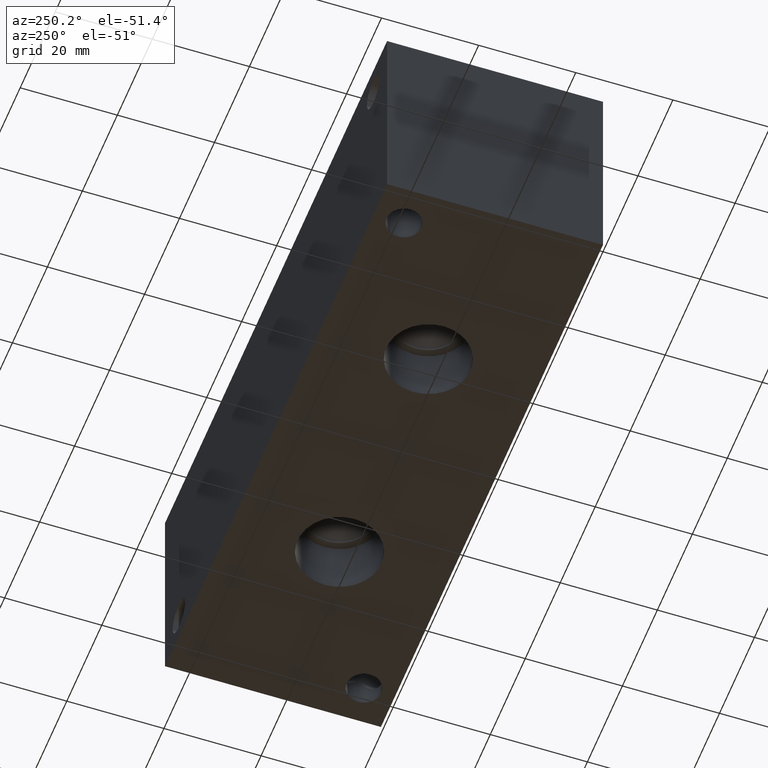
[diagram: clean part render]
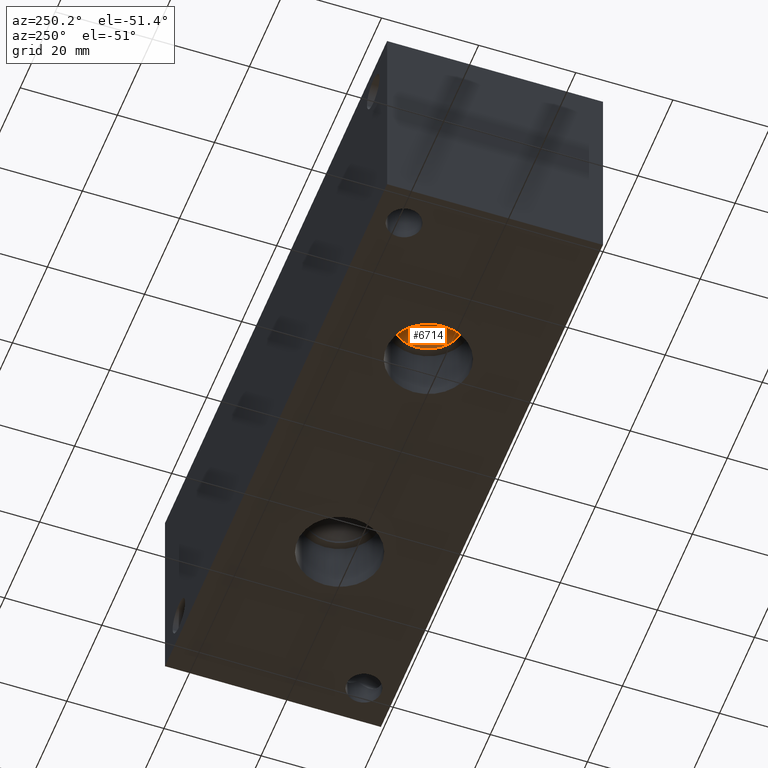
[diagram: same view with one face highlighted and labeled with its STEP entity id]
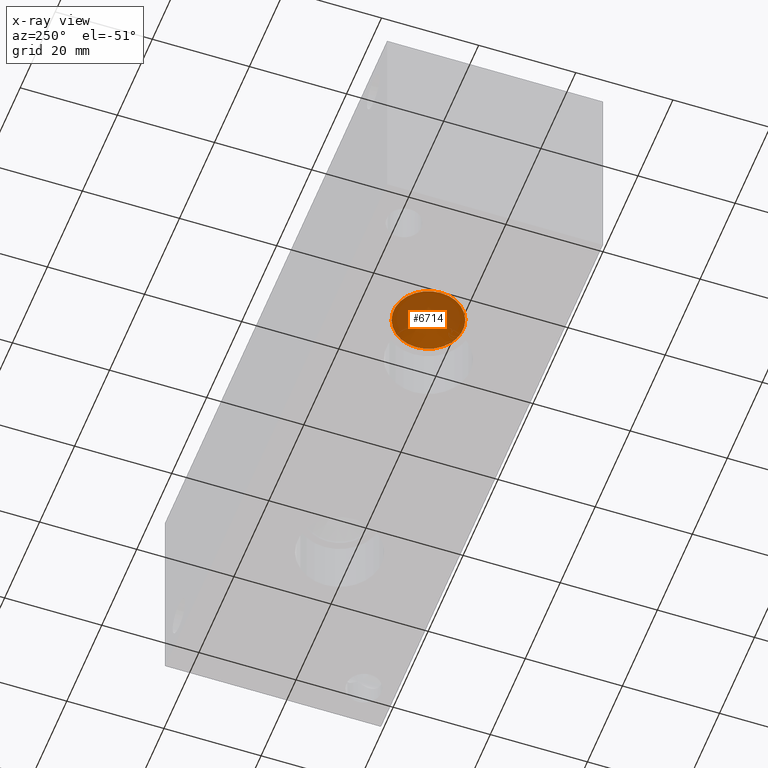
[diagram: x-ray of the same camera — body ghosted, the highlighted face saturated]
A machine part, auxiliary view. The second image highlights one B-rep face of the part: STEP entity #6714.
The next image is the same camera in x-ray: the body ghosted, the highlighted face saturated — about 53% of this face is hidden behind the body in this view.
In plain terms, the highlighted conical surface has half-angle 60 deg.
Its self-contained STEP definition (entity closure, byte-faithful):
#42=CONICAL_SURFACE('',#6978,3.57505,1.0471975511966);
#56=CIRCLE('',#6979,7.1501);
#57=CIRCLE('',#6980,7.1501);
#667=FACE_OUTER_BOUND('',#1038,.T.);
#1038=EDGE_LOOP('',(#5828,#5829,#5830,#5831));
#1725=LINE('',#11328,#2392);
#2392=VECTOR('',#8133,3.57505);
#3184=VERTEX_POINT('',#11324);
#3185=VERTEX_POINT('',#11325);
#3186=VERTEX_POINT('',#11327);
#4081=EDGE_CURVE('',#3184,#3185,#56,.T.);
#4082=EDGE_CURVE('',#3185,#3186,#1725,.T.);
#4083=EDGE_CURVE('',#3185,#3184,#57,.T.);
#5828=ORIENTED_EDGE('',*,*,#4081,.T.);
#5829=ORIENTED_EDGE('',*,*,#4082,.T.);
#5830=ORIENTED_EDGE('',*,*,#4082,.F.);
#5831=ORIENTED_EDGE('',*,*,#4083,.T.);
#6714=ADVANCED_FACE('',(#667),#42,.F.);
#6978=AXIS2_PLACEMENT_3D('',#11323,#8129,#8130);
#6979=AXIS2_PLACEMENT_3D('',#11326,#8131,#8132);
#6980=AXIS2_PLACEMENT_3D('',#11329,#8134,#8135);
#8129=DIRECTION('center_axis',(0.,0.,-1.));
#8130=DIRECTION('ref_axis',(1.,0.,0.));
#8131=DIRECTION('center_axis',(0.,0.,-1.));
#8132=DIRECTION('ref_axis',(1.,0.,0.));
#8133=DIRECTION('',(0.866025403784439,-1.06057523872491E-16,0.5));
#8134=DIRECTION('center_axis',(0.,0.,-1.));
#8135=DIRECTION('ref_axis',(1.,0.,0.));
#11323=CARTESIAN_POINT('Origin',(38.1,22.225,14.2116660798664));
#11324=CARTESIAN_POINT('',(45.2501,22.225,12.14761));
#11325=CARTESIAN_POINT('',(30.9499,22.225,12.14761));
#11326=CARTESIAN_POINT('Origin',(38.1,22.225,12.14761));
#11327=CARTESIAN_POINT('',(38.1,22.225,16.2757221597327));
#11328=CARTESIAN_POINT('',(34.52495,22.225,14.2116660798664));
#11329=CARTESIAN_POINT('Origin',(38.1,22.225,12.14761));